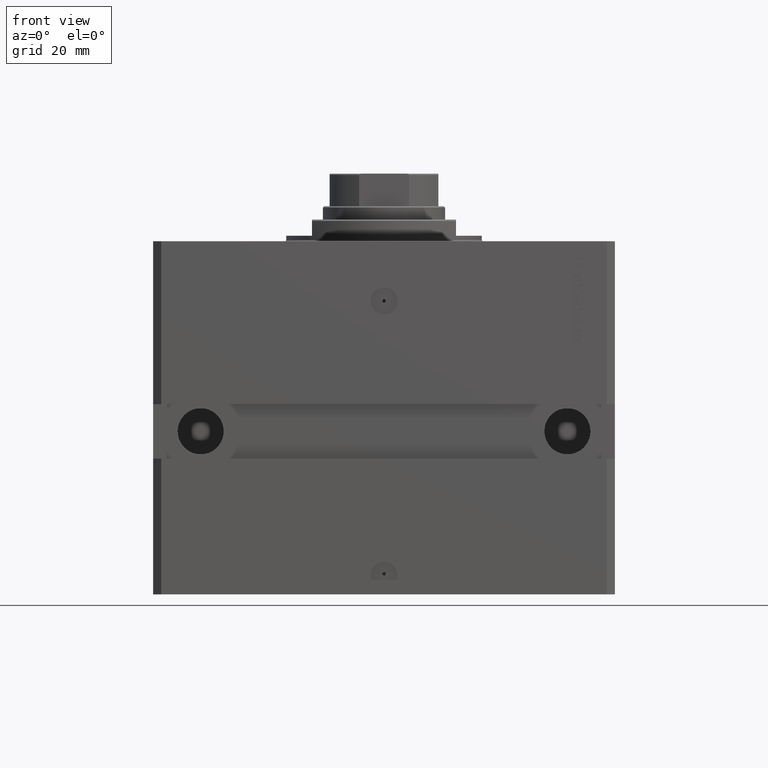
[diagram: clean part render]
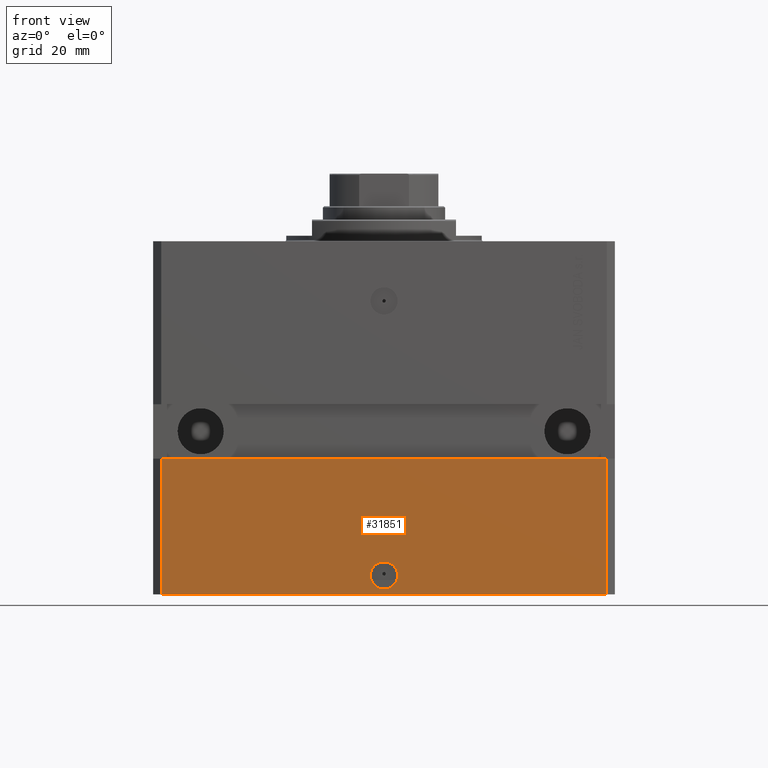
[diagram: same view with one face highlighted and labeled with its STEP entity id]
A machine part, front view. The second image highlights one B-rep face of the part: STEP entity #31851.
In plain terms, the highlighted planar face has unit normal (0, -1, 0).
Its self-contained STEP definition (entity closure, byte-faithful):
#7 = VERTEX_POINT ( 'NONE', #512 ) ;
#512 = CARTESIAN_POINT ( 'NONE',  ( -5.000000000000006217, -70.00000000000000000, -123.0000000000000000 ) ) ;
#523 = VERTEX_POINT ( 'NONE', #13594 ) ;
#986 = FACE_BOUND ( 'NONE', #29445, .T. ) ;
#1021 = CARTESIAN_POINT ( 'NONE',  ( 0.000000000000000000, -70.00000000000000000, -123.0000000000000000 ) ) ;
#3189 = CARTESIAN_POINT ( 'NONE',  ( 82.00000000000001421, -69.99999999999998579, -80.00000000000001421 ) ) ;
#4098 = LINE ( 'NONE', #14727, #7969 ) ;
#4211 = EDGE_CURVE ( 'NONE', #14628, #7, #18804, .T. ) ;
#5686 = CARTESIAN_POINT ( 'NONE',  ( 82.00000000000001421, -70.00000000000000000, -130.0000000000000000 ) ) ;
#6176 = EDGE_CURVE ( 'NONE', #7, #14628, #29162, .T. ) ;
#7834 = LINE ( 'NONE', #40399, #24180 ) ;
#7969 = VECTOR ( 'NONE', #24461, 1000.000000000000000 ) ;
#7990 = VECTOR ( 'NONE', #41327, 1000.000000000000000 ) ;
#8170 = ORIENTED_EDGE ( 'NONE', *, *, #17612, .F. ) ;
#9430 = DIRECTION ( 'NONE',  ( 1.000000000000000000, 0.000000000000000000, 0.000000000000000000 ) ) ;
#10527 = EDGE_CURVE ( 'NONE', #28943, #34524, #7834, .T. ) ;
#10957 = CARTESIAN_POINT ( 'NONE',  ( -82.00000000000001421, -70.00000000000000000, -130.0000000000000000 ) ) ;
#11497 = EDGE_CURVE ( 'NONE', #43540, #523, #4098, .T. ) ;
#11884 = DIRECTION ( 'NONE',  ( 1.000000000000000000, 0.000000000000000000, 0.000000000000000000 ) ) ;
#12878 = CARTESIAN_POINT ( 'NONE',  ( -82.00000000000001421, -70.00000000000000000, -130.0000000000000000 ) ) ;
#13594 = CARTESIAN_POINT ( 'NONE',  ( -82.00000000000000000, -70.00000000000001421, -80.00000000000001421 ) ) ;
#13893 = ORIENTED_EDGE ( 'NONE', *, *, #35318, .T. ) ;
#14628 = VERTEX_POINT ( 'NONE', #25879 ) ;
#14727 = CARTESIAN_POINT ( 'NONE',  ( -82.00000000000001421, -70.00000000000000000, -130.0000000000000000 ) ) ;
#15121 = DIRECTION ( 'NONE',  ( 1.176083712526788232E-16, -1.000000000000000000, 0.000000000000000000 ) ) ;
#15122 = AXIS2_PLACEMENT_3D ( 'NONE', #10957, #43512, #21570 ) ;
#16034 = EDGE_LOOP ( 'NONE', ( #8170, #43025, #13893, #38300 ) ) ;
#16778 = DIRECTION ( 'NONE',  ( 1.000000000000000000, 0.000000000000000000, 0.000000000000000000 ) ) ;
#17612 = EDGE_CURVE ( 'NONE', #523, #34524, #30919, .T. ) ;
#18804 = CIRCLE ( 'NONE', #21022, 5.000000000000006217 ) ;
#20742 = LINE ( 'NONE', #12878, #45482 ) ;
#21022 = AXIS2_PLACEMENT_3D ( 'NONE', #1021, #15121, #11884 ) ;
#21570 = DIRECTION ( 'NONE',  ( 0.000000000000000000, -0.000000000000000000, -1.000000000000000000 ) ) ;
#23078 = CARTESIAN_POINT ( 'NONE',  ( -82.00000000000001421, -70.00000000000000000, -130.0000000000000000 ) ) ;
#23945 = DIRECTION ( 'NONE',  ( 1.176083712526788232E-16, -1.000000000000000000, 0.000000000000000000 ) ) ;
#24065 = AXIS2_PLACEMENT_3D ( 'NONE', #37804, #23945, #16778 ) ;
#24180 = VECTOR ( 'NONE', #43631, 1000.000000000000000 ) ;
#24461 = DIRECTION ( 'NONE',  ( 0.000000000000000000, 0.000000000000000000, 1.000000000000000000 ) ) ;
#25879 = CARTESIAN_POINT ( 'NONE',  ( 5.000000000000006217, -70.00000000000000000, -123.0000000000000000 ) ) ;
#28943 = VERTEX_POINT ( 'NONE', #5686 ) ;
#29162 = CIRCLE ( 'NONE', #24065, 5.000000000000006217 ) ;
#29411 = FACE_OUTER_BOUND ( 'NONE', #16034, .T. ) ;
#29445 = EDGE_LOOP ( 'NONE', ( #31218, #43446 ) ) ;
#30919 = LINE ( 'NONE', #38549, #7990 ) ;
#31218 = ORIENTED_EDGE ( 'NONE', *, *, #4211, .F. ) ;
#31851 = ADVANCED_FACE ( 'NONE', ( #986, #29411 ), #36349, .T. ) ;
#34524 = VERTEX_POINT ( 'NONE', #3189 ) ;
#35318 = EDGE_CURVE ( 'NONE', #43540, #28943, #20742, .T. ) ;
#36349 = PLANE ( 'NONE',  #15122 ) ;
#37804 = CARTESIAN_POINT ( 'NONE',  ( 0.000000000000000000, -70.00000000000000000, -123.0000000000000000 ) ) ;
#38300 = ORIENTED_EDGE ( 'NONE', *, *, #10527, .T. ) ;
#38549 = CARTESIAN_POINT ( 'NONE',  ( -85.00000000000001421, -70.00000000000001421, -80.00000000000001421 ) ) ;
#40399 = CARTESIAN_POINT ( 'NONE',  ( 82.00000000000001421, -70.00000000000000000, -130.0000000000000000 ) ) ;
#41327 = DIRECTION ( 'NONE',  ( 1.000000000000000000, 1.632680918566406300E-16, 0.000000000000000000 ) ) ;
#43025 = ORIENTED_EDGE ( 'NONE', *, *, #11497, .F. ) ;
#43446 = ORIENTED_EDGE ( 'NONE', *, *, #6176, .F. ) ;
#43512 = DIRECTION ( 'NONE',  ( 0.000000000000000000, -1.000000000000000000, 0.000000000000000000 ) ) ;
#43540 = VERTEX_POINT ( 'NONE', #23078 ) ;
#43631 = DIRECTION ( 'NONE',  ( 0.000000000000000000, 0.000000000000000000, 1.000000000000000000 ) ) ;
#45482 = VECTOR ( 'NONE', #9430, 1000.000000000000000 ) ;